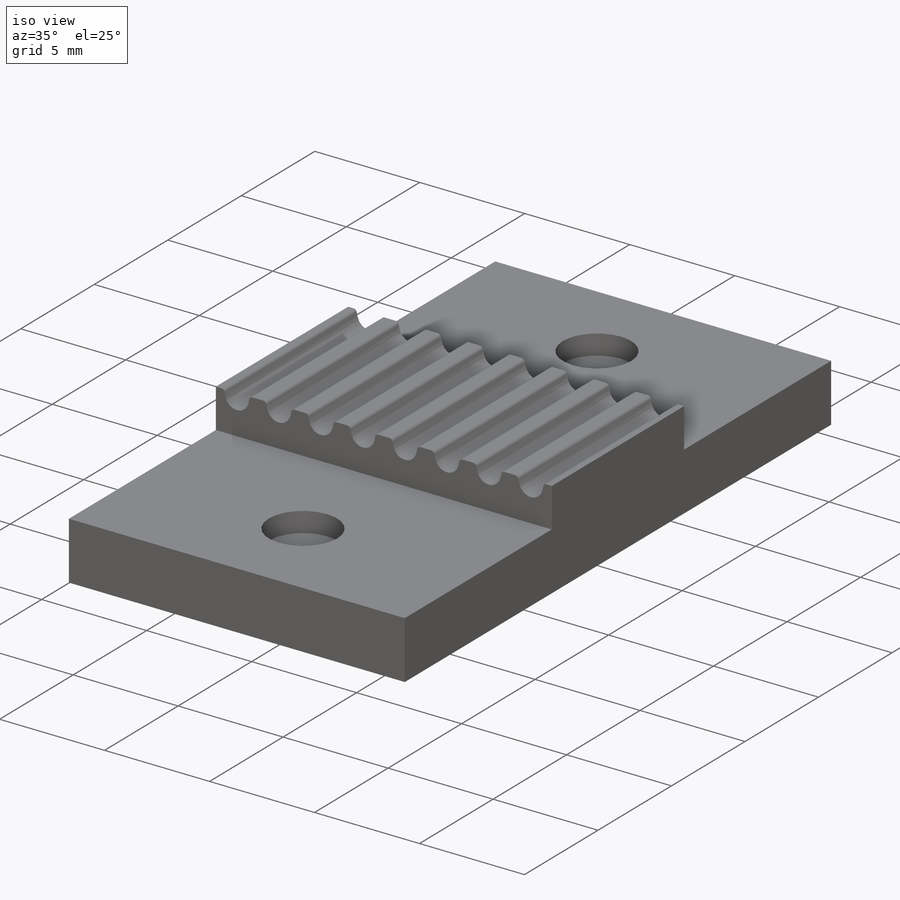
[diagram: iso view]
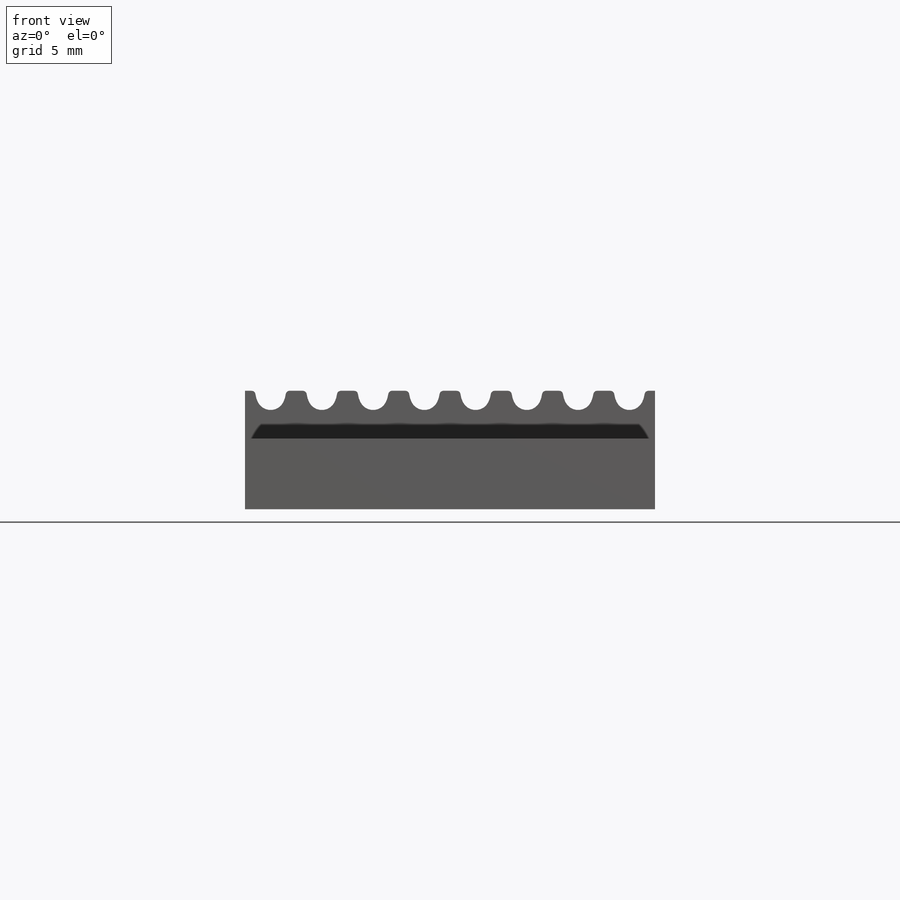
[diagram: front view]
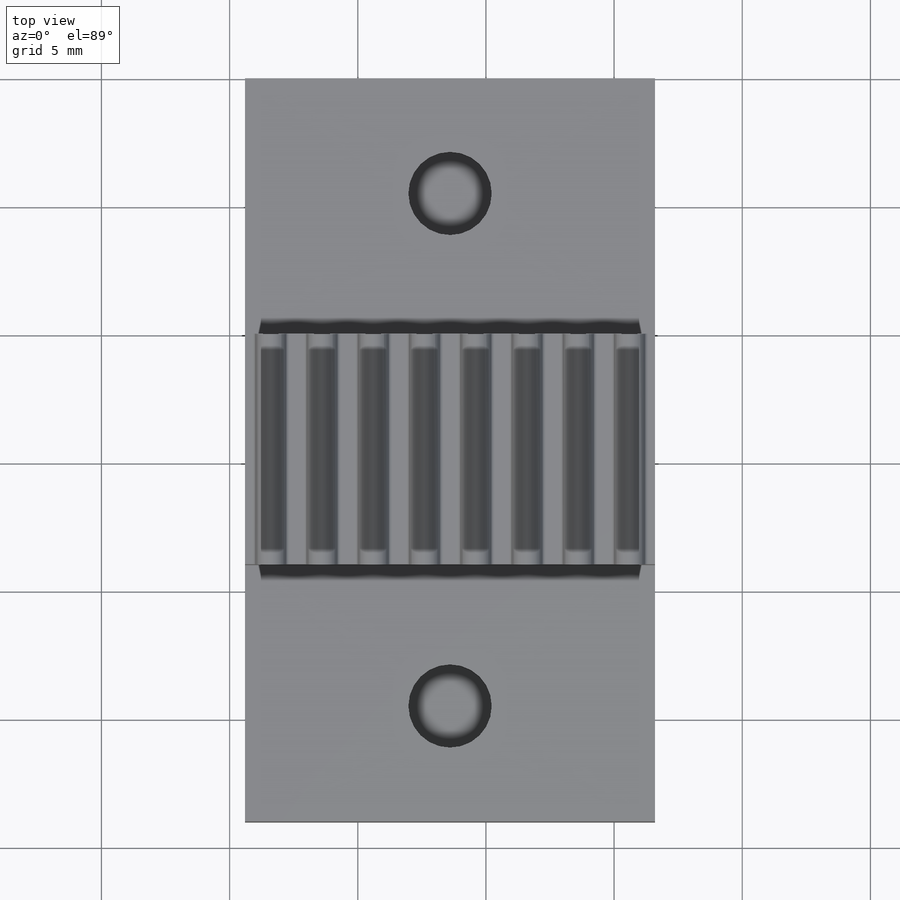
[diagram: top view]
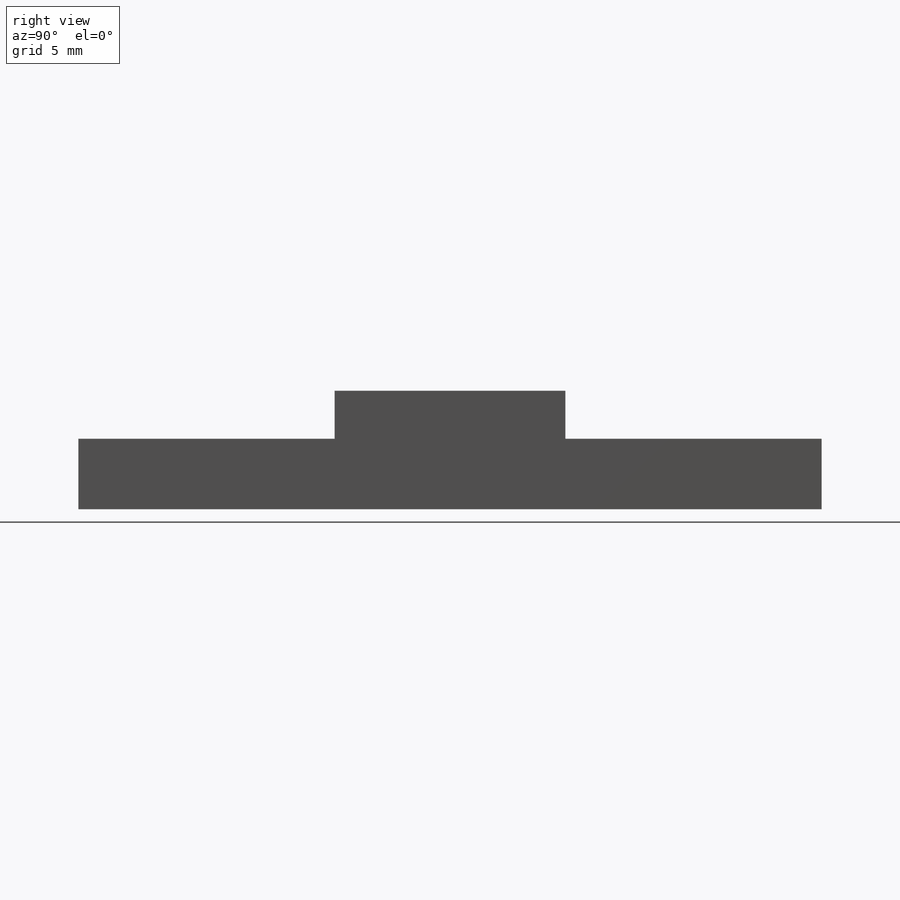
[diagram: right view]
SOLIDWORKS PART (.sldprt)
format: sldprt  version: not decoded by parser v0  size: 336,896 bytes
history: native  units: mm
features: sketch x7, extrude x5, cut_extrude x2, material x1 (+16 scaffold rows collapsed)
feature tree (31):
  scaffold x16  (default folders/planes/origin — collapsed)
  material  "Material <not specified>"
  sketch  "Sketch1"  dims[D1=1.87mm]
  extrude  "Boss-Extrude1"  Depth=9mm
  sketch  "Sketch6"
  extrude  "Boss-Extrude6"  Depth=2.75mm
  sketch  "Sketch7"  dims[D1=2.75mm]
  extrude  "Boss-Extrude7"  Depth=10mm
  sketch  "Sketch8"  dims[D1=2.75mm]
  extrude  "Boss-Extrude8"  Depth=10mm
  sketch  "Sketch10"  dims[c1.D1=3.25mm c1.D3=5.2mm c1.D4=5.2mm c1.D2=8.0mm c2.D3=5.0mm c2.D4=20.0mm c3.D3=10.0mm]
  cut_extrude  "Cut-Extrude1"  Depth=10mm
  sketch  "Sketch11"  dims[D1=5.75mm]
  cut_extrude  "Cut-Extrude2"  Depth=1.5mm
  sketch  "Sketch15"
  extrude  "Boss-Extrude11"  Depth=0.3mm
decode coverage: 12 of 14 modeling features carry decoded parameters
note: suppression state not decoded; provenance and decode notes live in map.json
